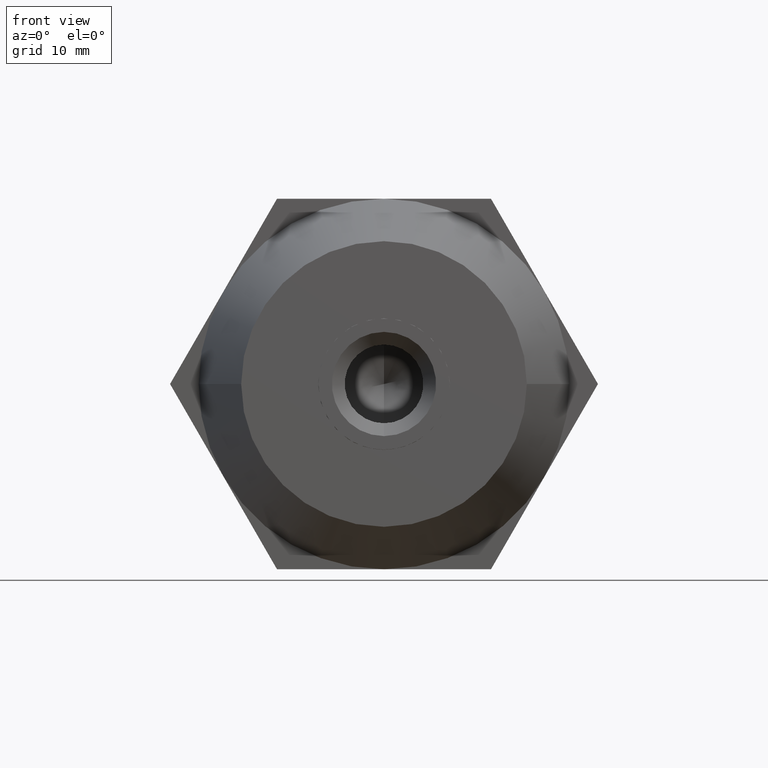
[diagram: clean part render]
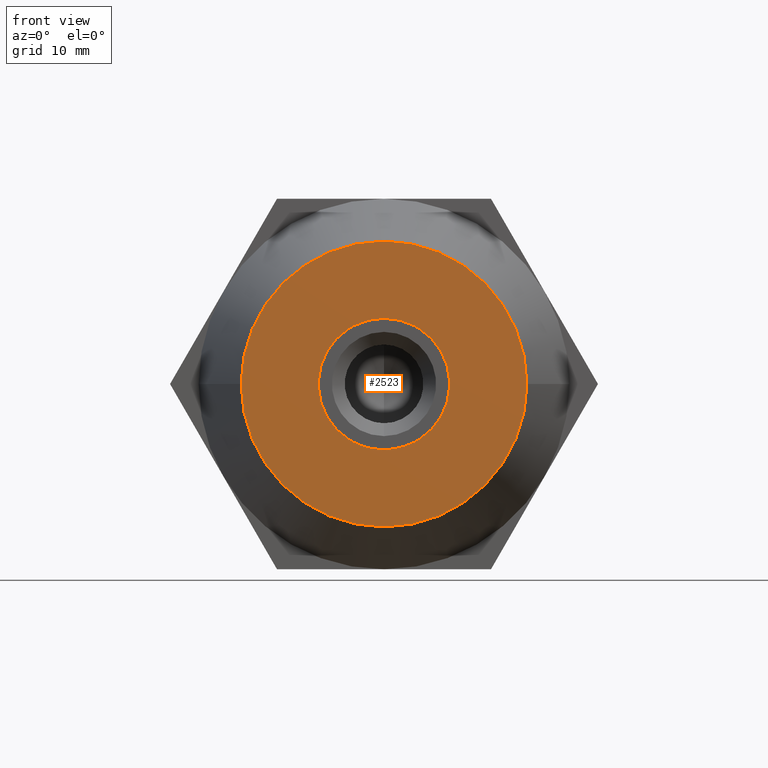
[diagram: same view with one face highlighted and labeled with its STEP entity id]
A machine part, front view. The second image highlights one B-rep face of the part: STEP entity #2523.
In plain terms, the highlighted planar face has unit normal (0, -1, 0).
Its self-contained STEP definition (entity closure, byte-faithful):
#8 = PLANE ( 'NONE',  #363 ) ;
#17 = VECTOR ( 'NONE', #2485, 1000.000000000000000 ) ;
#80 = VERTEX_POINT ( 'NONE', #702 ) ;
#86 = VERTEX_POINT ( 'NONE', #1008 ) ;
#95 = CARTESIAN_POINT ( 'NONE',  ( 1.845814032733295300E-015, -30.00000000000000000, 0.0000000000000000000 ) ) ;
#129 = VERTEX_POINT ( 'NONE', #674 ) ;
#142 = LINE ( 'NONE', #3562, #2410 ) ;
#204 = CIRCLE ( 'NONE', #258, 8.509999999999999800 ) ;
#207 = LINE ( 'NONE', #1907, #3753 ) ;
#236 = EDGE_LOOP ( 'NONE', ( #1835, #2808 ) ) ;
#258 = AXIS2_PLACEMENT_3D ( 'NONE', #2070, #264, #3907 ) ;
#264 = DIRECTION ( 'NONE',  ( -1.224646799147352000E-016, 1.000000000000000000, -0.0000000000000000000 ) ) ;
#363 = AXIS2_PLACEMENT_3D ( 'NONE', #1819, #1168, #2718 ) ;
#385 = LINE ( 'NONE', #3504, #1094 ) ;
#447 = DIRECTION ( 'NONE',  ( -0.8660254037844387100, -1.060575238724905700E-016, -0.4999999999999998900 ) ) ;
#448 = ORIENTED_EDGE ( 'NONE', *, *, #3132, .T. ) ;
#466 = ORIENTED_EDGE ( 'NONE', *, *, #1686, .T. ) ;
#476 = CIRCLE ( 'NONE', #1020, 18.50000000000000000 ) ;
#480 = VERTEX_POINT ( 'NONE', #3470 ) ;
#489 = DIRECTION ( 'NONE',  ( -1.000000000000000000, -1.875376730785737500E-016, 0.0000000000000000000 ) ) ;
#499 = DIRECTION ( 'NONE',  ( -1.224646799147352000E-016, 1.000000000000000000, -0.0000000000000000000 ) ) ;
#534 = EDGE_CURVE ( 'NONE', #1779, #918, #821, .T. ) ;
#552 = VERTEX_POINT ( 'NONE', #3475 ) ;
#558 = CARTESIAN_POINT ( 'NONE',  ( -3.892823573006345000, -30.00000000000000000, -7.567431838440700000 ) ) ;
#592 = EDGE_CURVE ( 'NONE', #2428, #939, #204, .T. ) ;
#653 = CARTESIAN_POINT ( 'NONE',  ( 3.892823573006325000, -30.00000000000000000, -7.567431838440709800 ) ) ;
#674 = CARTESIAN_POINT ( 'NONE',  ( 4.607176426993680400, -30.00000000000000000, -7.155000025894739900 ) ) ;
#680 = CIRCLE ( 'NONE', #2388, 18.50000000000000000 ) ;
#702 = CARTESIAN_POINT ( 'NONE',  ( -3.892823573006450200, -30.00000000000000000, 7.567431838440649400 ) ) ;
#712 = CARTESIAN_POINT ( 'NONE',  ( 1.845814032733295300E-015, -30.00000000000000000, 0.0000000000000000000 ) ) ;
#725 = CIRCLE ( 'NONE', #2209, 8.509999999999999800 ) ;
#727 = CARTESIAN_POINT ( 'NONE',  ( 3.892823573006349800, -30.00000000000000000, 7.567431838440700000 ) ) ;
#743 = CARTESIAN_POINT ( 'NONE',  ( 1.845814032733295300E-015, -30.00000000000000000, 0.0000000000000000000 ) ) ;
#763 = DIRECTION ( 'NONE',  ( -1.224646799147352000E-016, 1.000000000000000000, -0.0000000000000000000 ) ) ;
#814 = LINE ( 'NONE', #2182, #17 ) ;
#821 = CIRCLE ( 'NONE', #3292, 8.509999999999999800 ) ;
#867 = CARTESIAN_POINT ( 'NONE',  ( 1.845814032733295300E-015, -30.00000000000000000, 0.0000000000000000000 ) ) ;
#872 = VERTEX_POINT ( 'NONE', #1468 ) ;
#887 = ORIENTED_EDGE ( 'NONE', *, *, #2221, .T. ) ;
#918 = VERTEX_POINT ( 'NONE', #558 ) ;
#933 = ORIENTED_EDGE ( 'NONE', *, *, #2216, .T. ) ;
#939 = VERTEX_POINT ( 'NONE', #1780 ) ;
#1008 = CARTESIAN_POINT ( 'NONE',  ( 4.607176426993650200, -30.00000000000000000, 7.155000025894760400 ) ) ;
#1020 = AXIS2_PLACEMENT_3D ( 'NONE', #1970, #2301, #3478 ) ;
#1094 = VECTOR ( 'NONE', #2582, 1000.000000000000000 ) ;
#1168 = DIRECTION ( 'NONE',  ( 1.224646799147352000E-016, -1.000000000000000000, 0.0000000000000000000 ) ) ;
#1242 = AXIS2_PLACEMENT_3D ( 'NONE', #95, #2849, #2248 ) ;
#1264 = VERTEX_POINT ( 'NONE', #727 ) ;
#1381 = DIRECTION ( 'NONE',  ( -1.224646799147352000E-016, 1.000000000000000000, -0.0000000000000000000 ) ) ;
#1386 = EDGE_CURVE ( 'NONE', #1873, #872, #2814, .T. ) ;
#1405 = EDGE_CURVE ( 'NONE', #3315, #129, #2131, .T. ) ;
#1468 = CARTESIAN_POINT ( 'NONE',  ( -4.607176426993549800, -30.00000000000000000, 7.155000025894819900 ) ) ;
#1505 = CARTESIAN_POINT ( 'NONE',  ( -8.500000000000000000, -30.00000000000000000, 3.534857879381550000E-015 ) ) ;
#1585 = CARTESIAN_POINT ( 'NONE',  ( 8.500000000000000000, -30.00000000000000000, -0.4124318125459435200 ) ) ;
#1598 = ORIENTED_EDGE ( 'NONE', *, *, #592, .T. ) ;
#1615 = VECTOR ( 'NONE', #3604, 1000.000000000000000 ) ;
#1626 = ORIENTED_EDGE ( 'NONE', *, *, #2528, .T. ) ;
#1647 = ORIENTED_EDGE ( 'NONE', *, *, #2695, .T. ) ;
#1656 = DIRECTION ( 'NONE',  ( 1.000000000000000000, 0.0000000000000000000, 0.0000000000000000000 ) ) ;
#1664 = FACE_OUTER_BOUND ( 'NONE', #236, .T. ) ;
#1686 = EDGE_CURVE ( 'NONE', #86, #2236, #2673, .T. ) ;
#1718 = ORIENTED_EDGE ( 'NONE', *, *, #1386, .T. ) ;
#1732 = DIRECTION ( 'NONE',  ( 0.8660254037844387100, 1.060575238724905700E-016, 0.4999999999999998900 ) ) ;
#1779 = VERTEX_POINT ( 'NONE', #3641 ) ;
#1780 = CARTESIAN_POINT ( 'NONE',  ( -8.500000000000000000, -30.00000000000000000, -0.4124318125459139900 ) ) ;
#1787 = ORIENTED_EDGE ( 'NONE', *, *, #2732, .T. ) ;
#1798 = AXIS2_PLACEMENT_3D ( 'NONE', #3724, #763, #1656 ) ;
#1819 = CARTESIAN_POINT ( 'NONE',  ( -18.50000000000000000, -30.00000000000000000, 0.0000000000000000000 ) ) ;
#1835 = ORIENTED_EDGE ( 'NONE', *, *, #1998, .F. ) ;
#1858 = VERTEX_POINT ( 'NONE', #653 ) ;
#1873 = VERTEX_POINT ( 'NONE', #3393 ) ;
#1907 = CARTESIAN_POINT ( 'NONE',  ( -9.625000000000000000, -30.00000000000000000, -15.37195091717380000 ) ) ;
#1935 = DIRECTION ( 'NONE',  ( 1.000000000000000000, 0.0000000000000000000, 0.0000000000000000000 ) ) ;
#1970 = CARTESIAN_POINT ( 'NONE',  ( 7.347880794884119900E-015, -30.00000000000000000, 0.0000000000000000000 ) ) ;
#1998 = EDGE_CURVE ( 'NONE', #552, #480, #680, .T. ) ;
#2015 = CARTESIAN_POINT ( 'NONE',  ( -18.12500000000000000, -30.00000000000000000, 0.6495190528383220100 ) ) ;
#2069 = ORIENTED_EDGE ( 'NONE', *, *, #2295, .T. ) ;
#2070 = CARTESIAN_POINT ( 'NONE',  ( 1.845814032733295300E-015, -30.00000000000000000, 0.0000000000000000000 ) ) ;
#2131 = CIRCLE ( 'NONE', #1798, 8.509999999999999800 ) ;
#2182 = CARTESIAN_POINT ( 'NONE',  ( 8.500000000000000000, -30.00000000000000000, 0.0000000000000000000 ) ) ;
#2209 = AXIS2_PLACEMENT_3D ( 'NONE', #743, #1381, #3176 ) ;
#2216 = EDGE_CURVE ( 'NONE', #80, #1264, #3371, .T. ) ;
#2221 = EDGE_CURVE ( 'NONE', #129, #1858, #207, .T. ) ;
#2236 = VERTEX_POINT ( 'NONE', #2262 ) ;
#2248 = DIRECTION ( 'NONE',  ( 1.000000000000000000, 0.0000000000000000000, -2.664535259100375700E-015 ) ) ;
#2262 = CARTESIAN_POINT ( 'NONE',  ( 8.500000000000000000, -30.00000000000000000, 0.4124318125459439700 ) ) ;
#2295 = EDGE_CURVE ( 'NONE', #1858, #1779, #725, .T. ) ;
#2301 = DIRECTION ( 'NONE',  ( -1.224646799147352000E-016, 1.000000000000000000, 0.0000000000000000000 ) ) ;
#2384 = DIRECTION ( 'NONE',  ( 1.000000000000000000, 0.0000000000000000000, 0.0000000000000000000 ) ) ;
#2388 = AXIS2_PLACEMENT_3D ( 'NONE', #3635, #2887, #489 ) ;
#2410 = VECTOR ( 'NONE', #1732, 1000.000000000000000 ) ;
#2424 = ORIENTED_EDGE ( 'NONE', *, *, #534, .T. ) ;
#2428 = VERTEX_POINT ( 'NONE', #2618 ) ;
#2485 = DIRECTION ( 'NONE',  ( 0.0000000000000000000, 0.0000000000000000000, -1.000000000000000000 ) ) ;
#2523 = ADVANCED_FACE ( 'NONE', ( #1664, #3893 ), #8, .T. ) ;
#2528 = EDGE_CURVE ( 'NONE', #939, #1873, #2821, .T. ) ;
#2571 = DIRECTION ( 'NONE',  ( -0.8660254037844387100, -1.060575238724905700E-016, 0.4999999999999998900 ) ) ;
#2582 = DIRECTION ( 'NONE',  ( 0.8660254037844387100, 1.060575238724905700E-016, -0.4999999999999998900 ) ) ;
#2611 = DIRECTION ( 'NONE',  ( 1.000000000000000000, 0.0000000000000000000, 0.0000000000000000000 ) ) ;
#2618 = CARTESIAN_POINT ( 'NONE',  ( -4.607176426993640400, -30.00000000000000000, -7.155000025894760400 ) ) ;
#2673 = CIRCLE ( 'NONE', #3103, 8.509999999999999800 ) ;
#2695 = EDGE_CURVE ( 'NONE', #872, #80, #142, .T. ) ;
#2718 = DIRECTION ( 'NONE',  ( 1.000000000000000000, 1.224646799147352000E-016, 0.0000000000000000000 ) ) ;
#2732 = EDGE_CURVE ( 'NONE', #2236, #3315, #814, .T. ) ;
#2808 = ORIENTED_EDGE ( 'NONE', *, *, #3165, .F. ) ;
#2814 = CIRCLE ( 'NONE', #3783, 8.509999999999999800 ) ;
#2821 = LINE ( 'NONE', #1505, #1615 ) ;
#2849 = DIRECTION ( 'NONE',  ( -1.224646799147352000E-016, 1.000000000000000000, -0.0000000000000000000 ) ) ;
#2887 = DIRECTION ( 'NONE',  ( -1.224646799147352000E-016, 1.000000000000000000, 0.0000000000000000000 ) ) ;
#2988 = EDGE_CURVE ( 'NONE', #1264, #86, #385, .T. ) ;
#2989 = DIRECTION ( 'NONE',  ( -1.224646799147352000E-016, 1.000000000000000000, -0.0000000000000000000 ) ) ;
#3103 = AXIS2_PLACEMENT_3D ( 'NONE', #867, #2989, #2384 ) ;
#3125 = LINE ( 'NONE', #2015, #3880 ) ;
#3132 = EDGE_CURVE ( 'NONE', #918, #2428, #3125, .T. ) ;
#3165 = EDGE_CURVE ( 'NONE', #480, #552, #476, .T. ) ;
#3176 = DIRECTION ( 'NONE',  ( 1.000000000000000000, 0.0000000000000000000, 0.0000000000000000000 ) ) ;
#3292 = AXIS2_PLACEMENT_3D ( 'NONE', #3535, #499, #2611 ) ;
#3315 = VERTEX_POINT ( 'NONE', #1585 ) ;
#3371 = CIRCLE ( 'NONE', #1242, 8.509999999999999800 ) ;
#3393 = CARTESIAN_POINT ( 'NONE',  ( -8.500000000000000000, -30.00000000000039800, 0.4124318125459509600 ) ) ;
#3425 = DIRECTION ( 'NONE',  ( -1.224646799147352000E-016, 1.000000000000000000, -0.0000000000000000000 ) ) ;
#3470 = CARTESIAN_POINT ( 'NONE',  ( 18.50000000000000700, -29.99999999999999600, 2.602374448188125800E-015 ) ) ;
#3475 = CARTESIAN_POINT ( 'NONE',  ( -18.49999999999999300, -30.00000000000000400, 0.0000000000000000000 ) ) ;
#3478 = DIRECTION ( 'NONE',  ( -1.000000000000000000, -1.875376730785737500E-016, 0.0000000000000000000 ) ) ;
#3503 = ORIENTED_EDGE ( 'NONE', *, *, #1405, .T. ) ;
#3504 = CARTESIAN_POINT ( 'NONE',  ( -9.625000000000000000, -30.00000000000000000, 15.37195091717380000 ) ) ;
#3535 = CARTESIAN_POINT ( 'NONE',  ( 1.845814032733295300E-015, -30.00000000000000000, 0.0000000000000000000 ) ) ;
#3562 = CARTESIAN_POINT ( 'NONE',  ( -18.12500000000000000, -30.00000000000000000, -0.6495190528383250100 ) ) ;
#3604 = DIRECTION ( 'NONE',  ( -3.534857879381550100E-016, -4.328952387425414700E-032, 1.000000000000000000 ) ) ;
#3635 = CARTESIAN_POINT ( 'NONE',  ( 7.347880794884119900E-015, -30.00000000000000000, 0.0000000000000000000 ) ) ;
#3641 = CARTESIAN_POINT ( 'NONE',  ( 0.0000000000000000000, -30.00000000000000000, -8.509999999999999800 ) ) ;
#3724 = CARTESIAN_POINT ( 'NONE',  ( 1.845814032733295300E-015, -30.00000000000000000, 0.0000000000000000000 ) ) ;
#3753 = VECTOR ( 'NONE', #447, 1000.000000000000000 ) ;
#3782 = ORIENTED_EDGE ( 'NONE', *, *, #2988, .T. ) ;
#3783 = AXIS2_PLACEMENT_3D ( 'NONE', #712, #3425, #1935 ) ;
#3863 = EDGE_LOOP ( 'NONE', ( #448, #1598, #1626, #1718, #1647, #933, #3782, #466, #1787, #3503, #887, #2069, #2424 ) ) ;
#3880 = VECTOR ( 'NONE', #2571, 1000.000000000000000 ) ;
#3893 = FACE_BOUND ( 'NONE', #3863, .T. ) ;
#3907 = DIRECTION ( 'NONE',  ( 1.000000000000000000, 0.0000000000000000000, 0.0000000000000000000 ) ) ;